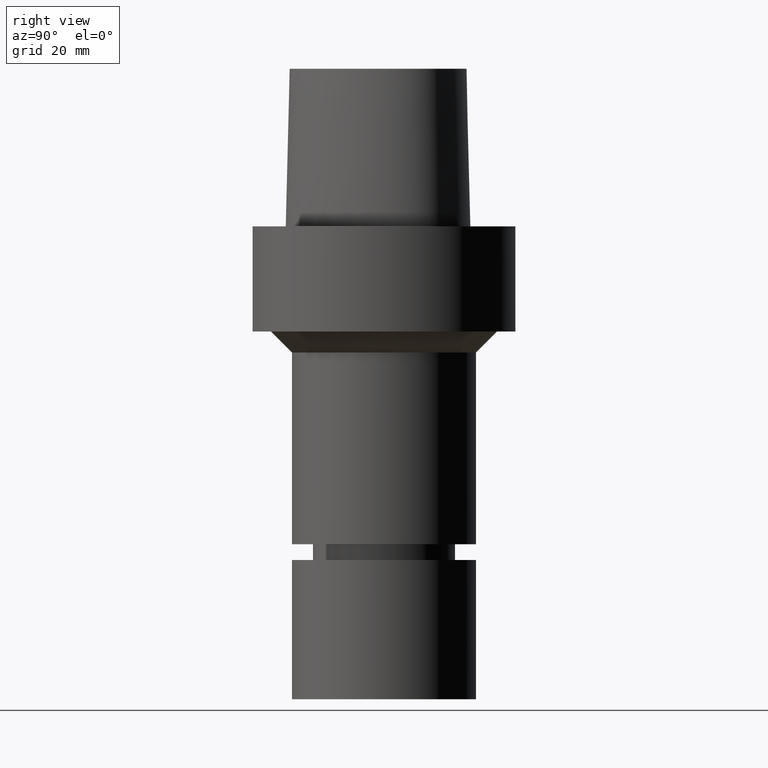
[diagram: clean part render]
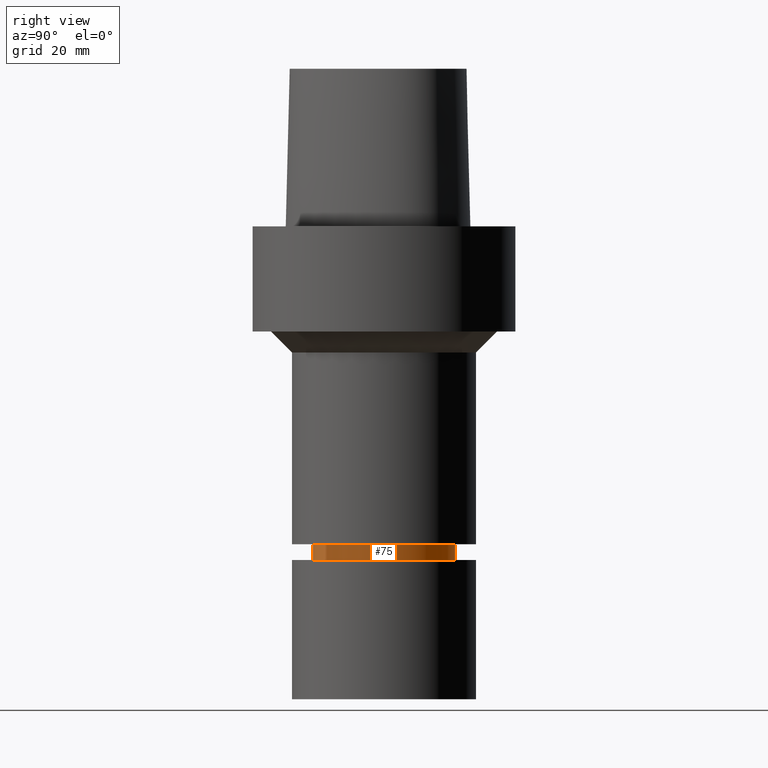
[diagram: same view with one face highlighted and labeled with its STEP entity id]
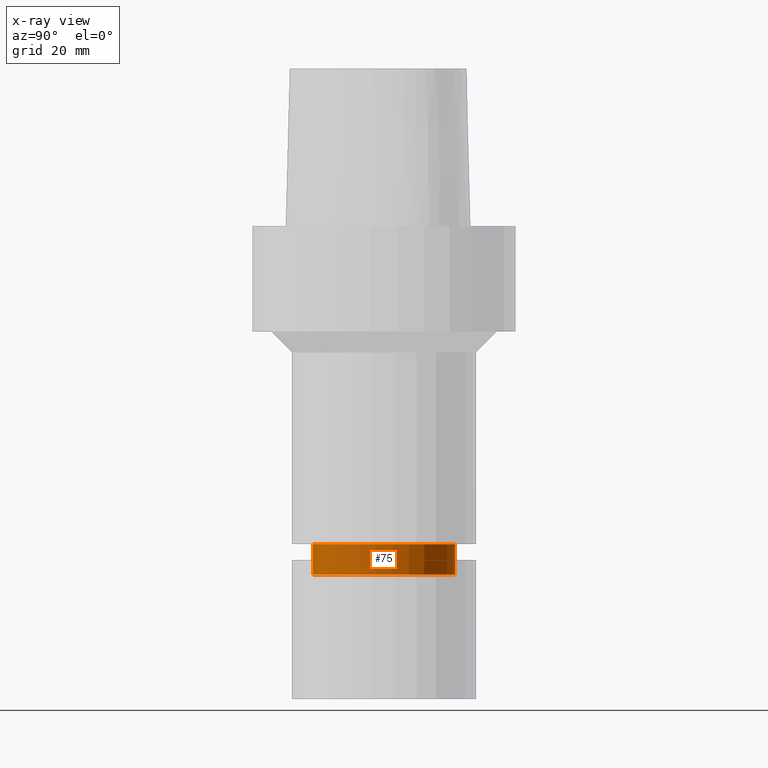
[diagram: x-ray of the same camera — body ghosted, the highlighted face saturated]
A machine part, right view. The second image highlights one B-rep face of the part: STEP entity #75.
The next image is the same camera in x-ray: the body ghosted, the highlighted face saturated — about 0% of this face is hidden behind the body in this view.
In plain terms, the highlighted cylindrical surface (bore or boss wall) has radius 13.5 mm, axis along (0, 0, -1).
Its self-contained STEP definition (entity closure, byte-faithful):
#68=EDGE_CURVE('Unnamed[1]',#172,#172,#173,.T.);
#75=ADVANCED_FACE('Unnamed[1]',(#182,#183),#184,.T.);
#89=EDGE_CURVE('Unnamed[1]',#204,#204,#205,.T.);
#172=VERTEX_POINT('',#310);
#173=CIRCLE('',#311,13.4999999999908);
#182=FACE_BOUND('',#371,.T.);
#183=FACE_BOUND('',#372,.T.);
#184=CYLINDRICAL_SURFACE('',#373,13.4999999999956);
#204=VERTEX_POINT('',#781);
#205=CIRCLE('',#782,13.5000000000005);
#310=CARTESIAN_POINT('',(3.70455656742073E-015,13.4999999999908,-60.4999999999998));
#311=AXIS2_PLACEMENT_3D('',#993,#994,#995);
#371=EDGE_LOOP('',(#1000));
#372=EDGE_LOOP('',(#1001));
#373=AXIS2_PLACEMENT_3D('',#1002,#1003,#1004);
#781=CARTESIAN_POINT('',(4.06107114292147E-015,13.5000000000005,-66.3223248654052));
#782=AXIS2_PLACEMENT_3D('',#1027,#1028,#1029);
#993=CARTESIAN_POINT('',(3.70455656742073E-015,7.40911313484146E-015,-60.4999999999998));
#994=DIRECTION('',(6.12323399573677E-017,1.22464679914735E-016,-1.0));
#995=DIRECTION('',(-1.23259516440783E-032,1.0,1.22464679914735E-016));
#1000=ORIENTED_EDGE('',*,*,#89,.F.);
#1001=ORIENTED_EDGE('',*,*,#68,.T.);
#1002=CARTESIAN_POINT('',(3.8828138551711E-015,7.7656277103422E-015,-63.4111624327025));
#1003=DIRECTION('',(6.12323399573677E-017,1.22464679914735E-016,-1.0));
#1004=DIRECTION('',(-1.23259516440783E-032,1.0,1.22464679914735E-016));
#1027=CARTESIAN_POINT('',(4.06107114292147E-015,8.12214228584294E-015,-66.3223248654052));
#1028=DIRECTION('',(6.12323399573677E-017,1.22464679914735E-016,-1.0));
#1029=DIRECTION('',(-1.23259516440783E-032,1.0,1.22464679914735E-016));